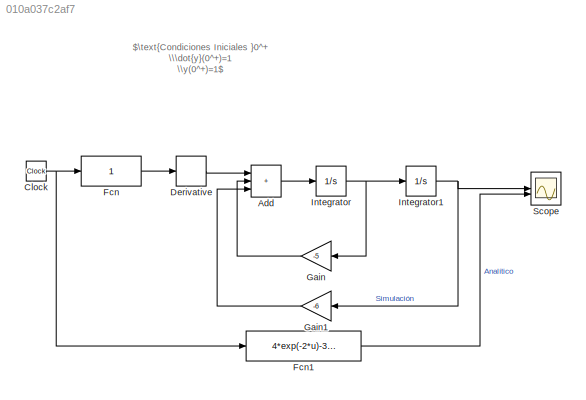
MODEL slx_010a037c2af7
KIND model
CONFIG AbsTol = auto
CONFIG EnableMultiTasking = off
CONFIG FixedStep = auto
CONFIG MaxStep = auto
CONFIG MinStep = auto
CONFIG RelTol = 1e-3
CONFIG SampleTimeConstraint = Unconstrained
CONFIG SolverName = VariableStepAuto
CONFIG StartTime = 0.0
CONFIG StopTime = 10.0
BLOCK [Sum] Add
  IconShape = rectangular
  Inputs = +++
BLOCK [Clock] Clock
BLOCK [Derivative] Derivative
BLOCK [Fcn] Fcn
  Expr = 1
BLOCK [Fcn] Fcn1
  Expr = 4*exp(-2*u)-3*exp(-3*u)
BLOCK [Gain] Gain
  Gain = -5
BLOCK [Gain] Gain1
  Gain = -6
BLOCK [Integrator] Integrator
  InitialCondition = 1
BLOCK [Integrator] Integrator1
  InitialCondition = 1
BLOCK [Scope] Scope
  Floating = off
  NumInputPorts = 2
  ScopeSpecificationString = Simulink.scopes.TimeScopeBlockCfg('CurrentConfiguration', extmgr.ConfigurationSet(extmgr.Configuration('Core','General UI',true),extmgr.Configuration('Core','Source UI',true),extmgr.Configuration('Sources','WiredSimulink',true),extmgr.Configuration('Visuals','Time Domain',true,'SerializedDisplays',{struct('MinYLimReal','-0.13166','MaxYLimReal','1.18494','YLabelReal','','MinYLimMag','0.00000','MaxY...<+1367ch>
ANNOTATION (root): $\text{Condiciones Iniciales }0^+ \\\dot{y}(0^+)=1 \\y(0^+)=1$
LINE Add:1 -> Integrator:1
NET Clock:1 -> Fcn1:1, Fcn:1
LINE Derivative:1 -> Add:1
LINE Fcn1:1 -> Scope:2
LINE Fcn:1 -> Derivative:1
LINE Gain1:1 -> Add:3
LINE Gain:1 -> Add:2
NET Integrator1:1 -> Gain1:1, Scope:1
NET Integrator:1 -> Gain:1, Integrator1:1
note: NET lines group one-source signal fan-out (src -> all destinations, sorted); 1:1 wires keep LINE
